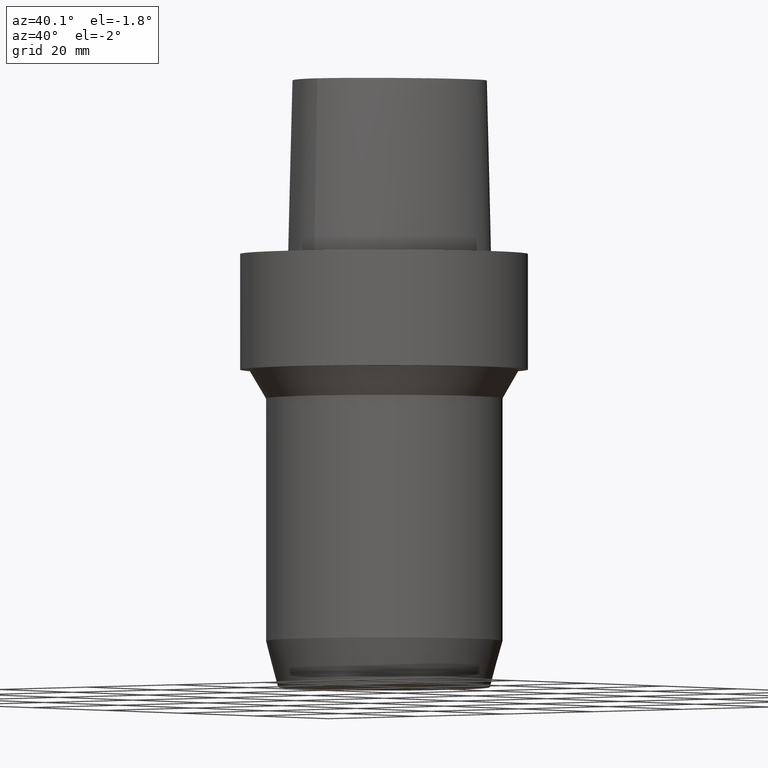
[diagram: clean part render]
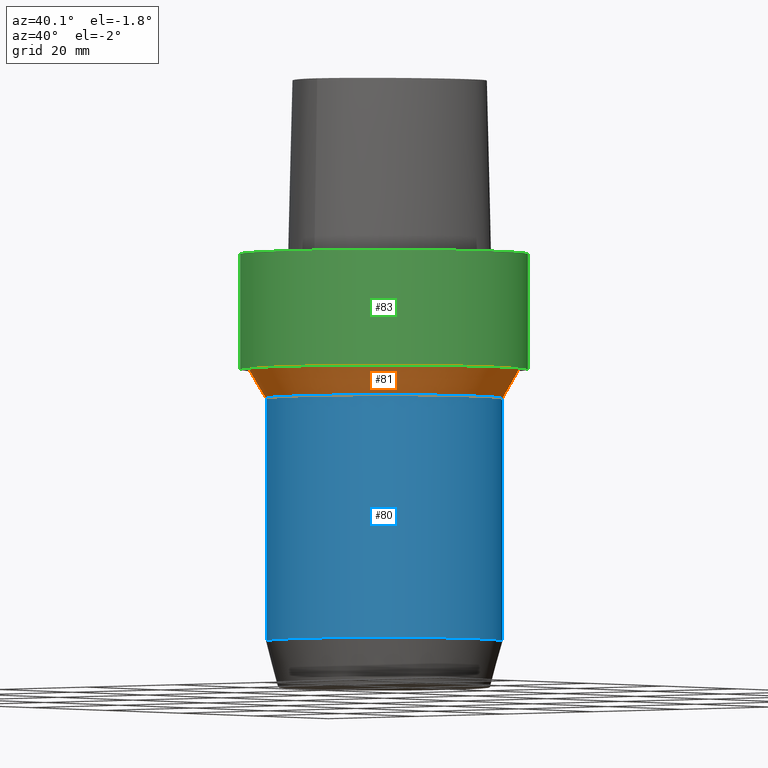
[diagram: same view with three faces highlighted in distinct colors, each labeled with its STEP entity id]
A machine part, auxiliary view with three faces highlighted in distinct colors.
Their STEP definitions:

[orange] entity #81 — the highlighted conical surface has half-angle 30 deg.
#81=ADVANCED_FACE('',(#100,#101),#102,.T.);
#100=FACE_BOUND('',#507,.T.);
#101=FACE_BOUND('',#508,.T.);
#102=CONICAL_SURFACE('',#509,21.94337567,0.523598774288151);
#507=EDGE_LOOP('',(#543));
#508=EDGE_LOOP('',(#544));
#509=AXIS2_PLACEMENT_3D('',#545,#546,#547);
#543=ORIENTED_EDGE('',*,*,#565,.F.);
#544=ORIENTED_EDGE('',*,*,#564,.T.);
#545=CARTESIAN_POINT('',(1.37772764918852E-015,2.75545529837704E-015,-22.5000000024129));
#546=DIRECTION('',(-6.12323399573677E-017,-1.22464679914735E-016,1.0));
#547=DIRECTION('',(-1.23259516440783E-032,1.0,1.22464679914735E-016));
#564=EDGE_CURVE('',#578,#578,#579,.T.);
#565=EDGE_CURVE('',#580,#580,#581,.T.);
#578=VERTEX_POINT('',#741);
#579=CIRCLE('',#742,20.5);
#580=VERTEX_POINT('',#743);
#581=CIRCLE('',#744,23.38675134);
#741=CARTESIAN_POINT('',(1.53080849922969E-015,20.5,-25.0000000048258));
#742=AXIS2_PLACEMENT_3D('',#756,#757,#758);
#743=CARTESIAN_POINT('',(1.22464679914735E-015,23.38675134,-20.0));
#744=AXIS2_PLACEMENT_3D('',#759,#760,#761);
#756=CARTESIAN_POINT('',(1.53080849922969E-015,3.06161699845938E-015,-25.0000000048258));
#757=DIRECTION('',(-6.12323399573677E-017,-1.22464679914735E-016,1.0));
#758=DIRECTION('',(-1.23259516440783E-032,1.0,1.22464679914735E-016));
#759=CARTESIAN_POINT('',(1.22464679914735E-015,2.44929359829471E-015,-20.0));
#760=DIRECTION('',(-6.12323399573677E-017,-1.22464679914735E-016,1.0));
#761=DIRECTION('',(-1.23259516440783E-032,1.0,1.22464679914735E-016));

[blue] entity #80 — the highlighted cylindrical surface (bore or boss wall) has radius 20.5 mm, axis along (0, 0, -1).
#80=ADVANCED_FACE('',(#97,#98),#99,.T.);
#97=FACE_BOUND('',#504,.T.);
#98=FACE_BOUND('',#505,.T.);
#99=CYLINDRICAL_SURFACE('',#506,20.5);
#504=EDGE_LOOP('',(#538));
#505=EDGE_LOOP('',(#539));
#506=AXIS2_PLACEMENT_3D('',#540,#541,#542);
#538=ORIENTED_EDGE('',*,*,#564,.F.);
#539=ORIENTED_EDGE('',*,*,#563,.T.);
#540=CARTESIAN_POINT('',(2.81668763788391E-015,5.63337527576782E-015,-45.9999999974686));
#541=DIRECTION('',(6.12323399573677E-017,1.22464679914735E-016,-1.0));
#542=DIRECTION('',(-1.23259516440783E-032,1.0,1.22464679914735E-016));
#563=EDGE_CURVE('',#576,#576,#577,.T.);
#564=EDGE_CURVE('',#578,#578,#579,.T.);
#576=VERTEX_POINT('',#739);
#577=CIRCLE('',#740,20.5);
#578=VERTEX_POINT('',#741);
#579=CIRCLE('',#742,20.5);
#739=CARTESIAN_POINT('',(4.10256677653813E-015,20.5,-66.9999999901114));
#740=AXIS2_PLACEMENT_3D('',#753,#754,#755);
#741=CARTESIAN_POINT('',(1.53080849922969E-015,20.5,-25.0000000048258));
#742=AXIS2_PLACEMENT_3D('',#756,#757,#758);
#753=CARTESIAN_POINT('',(4.10256677653813E-015,8.20513355307626E-015,-66.9999999901114));
#754=DIRECTION('',(-6.12323399573677E-017,-1.22464679914735E-016,1.0));
#755=DIRECTION('',(-1.23259516440783E-032,1.0,1.22464679914735E-016));
#756=CARTESIAN_POINT('',(1.53080849922969E-015,3.06161699845938E-015,-25.0000000048258));
#757=DIRECTION('',(-6.12323399573677E-017,-1.22464679914735E-016,1.0));
#758=DIRECTION('',(-1.23259516440783E-032,1.0,1.22464679914735E-016));

[green] entity #83 — the highlighted cylindrical surface (bore or boss wall) has radius 24.99 mm, axis along (0, 0, -1).
#83=ADVANCED_FACE('',(#106,#107),#108,.T.);
#106=FACE_BOUND('',#513,.T.);
#107=FACE_BOUND('',#514,.T.);
#108=CYLINDRICAL_SURFACE('',#515,24.99);
#513=EDGE_LOOP('',(#553));
#514=EDGE_LOOP('',(#554));
#515=AXIS2_PLACEMENT_3D('',#555,#556,#557);
#553=ORIENTED_EDGE('',*,*,#561,.F.);
#554=ORIENTED_EDGE('',*,*,#566,.T.);
#555=CARTESIAN_POINT('',(6.12323399573677E-016,1.22464679914735E-015,-10.0));
#556=DIRECTION('',(6.12323399573677E-017,1.22464679914735E-016,-1.0));
#557=DIRECTION('',(-1.23259516440783E-032,1.0,1.22464679914735E-016));
#561=EDGE_CURVE('',#572,#572,#573,.T.);
#566=EDGE_CURVE('',#582,#582,#583,.T.);
#572=VERTEX_POINT('',#735);
#573=CIRCLE('',#736,24.99);
#582=VERTEX_POINT('',#745);
#583=CIRCLE('',#746,24.99);
#735=CARTESIAN_POINT('',(-3.08025531585517E-031,24.99,3.06039235106923E-015));
#736=AXIS2_PLACEMENT_3D('',#747,#748,#749);
#745=CARTESIAN_POINT('',(1.22464679914735E-015,24.99,-20.0));
#746=AXIS2_PLACEMENT_3D('',#762,#763,#764);
#747=CARTESIAN_POINT('',(0.0,0.0,0.0));
#748=DIRECTION('',(-6.12323399573677E-017,-1.22464679914735E-016,1.0));
#749=DIRECTION('',(-1.23259516440783E-032,1.0,1.22464679914735E-016));
#762=CARTESIAN_POINT('',(1.22464679914735E-015,2.44929359829471E-015,-20.0));
#763=DIRECTION('',(-6.12323399573677E-017,-1.22464679914735E-016,1.0));
#764=DIRECTION('',(-1.23259516440783E-032,1.0,1.22464679914735E-016));